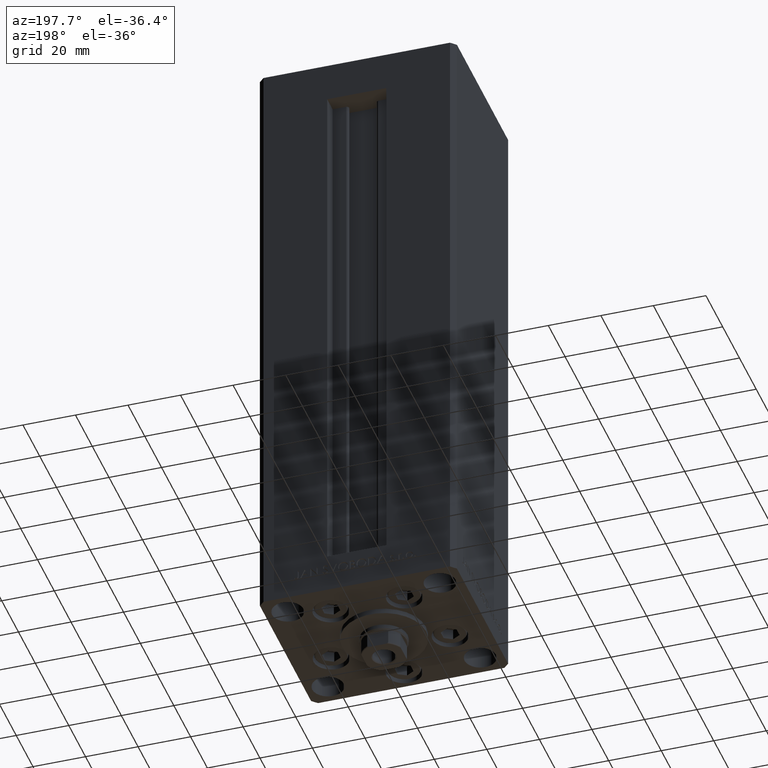
[diagram: clean part render]
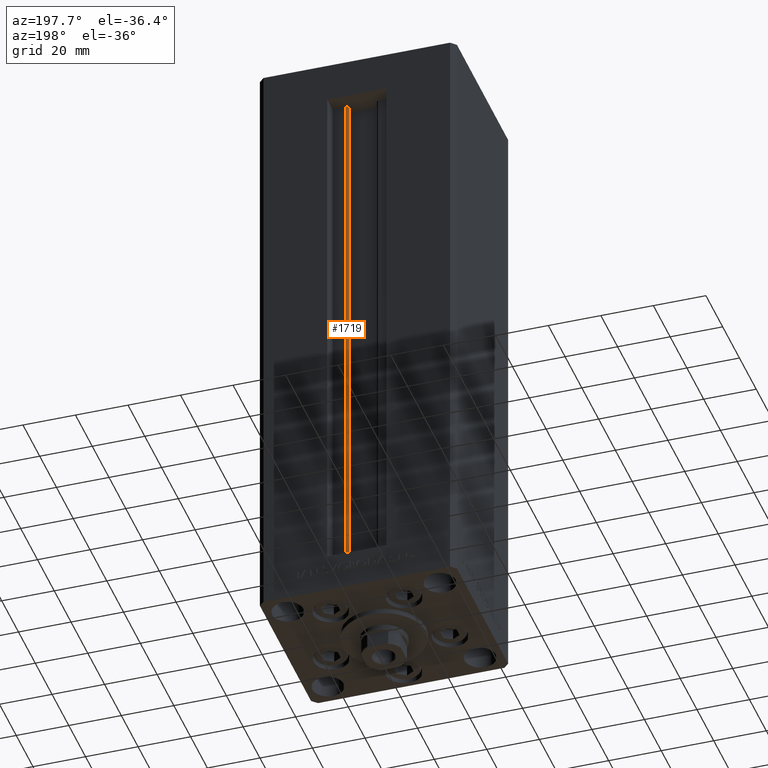
[diagram: same view with one face highlighted and labeled with its STEP entity id]
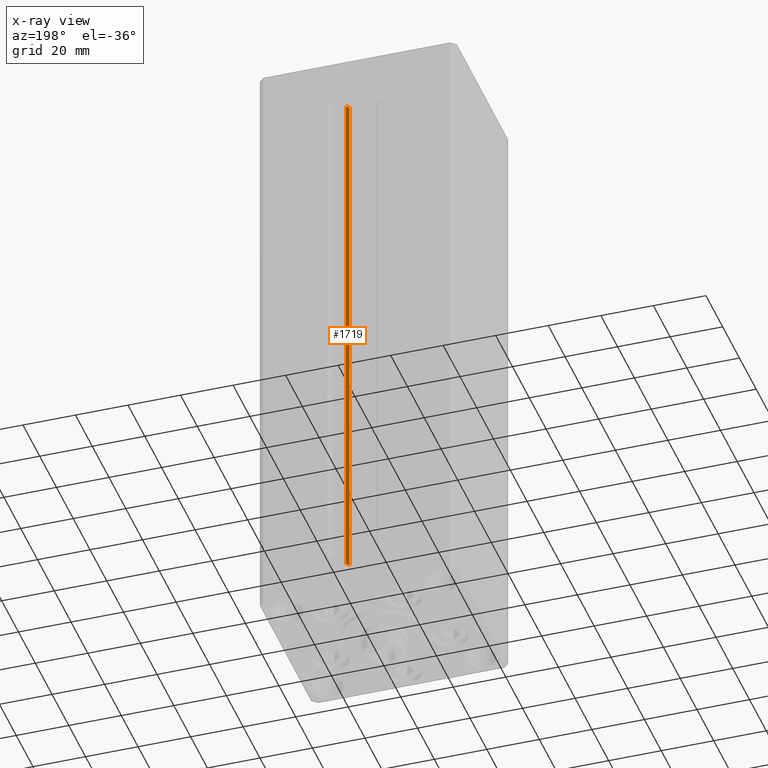
[diagram: x-ray of the same camera — body ghosted, the highlighted face saturated]
A machine part, auxiliary view. The second image highlights one B-rep face of the part: STEP entity #1719.
The next image is the same camera in x-ray: the body ghosted, the highlighted face saturated — about 0% of this face is hidden behind the body in this view.
In plain terms, the highlighted cylindrical surface (edge-blend (fillet) strip) has radius 0.9333 mm, axis along (0, 0, 1).
Its self-contained STEP definition (entity closure, byte-faithful):
#565 = CIRCLE ( 'NONE', #26622, 0.9333333333340008142 ) ;
#674 = VECTOR ( 'NONE', #31912, 1000.000000000000000 ) ;
#1719 = ADVANCED_FACE ( 'NONE', ( #30383 ), #42275, .T. ) ;
#3737 = VECTOR ( 'NONE', #37633, 1000.000000000000000 ) ;
#7791 = ORIENTED_EDGE ( 'NONE', *, *, #36480, .F. ) ;
#8090 = CIRCLE ( 'NONE', #36567, 0.9333333333340008142 ) ;
#8373 = CARTESIAN_POINT ( 'NONE',  ( 6.183333333334001480, 25.06666666666599141, 0.000000000000000000 ) ) ;
#9580 = CARTESIAN_POINT ( 'NONE',  ( 5.375042956467948052, 24.59999999999899245, 206.0000000000000000 ) ) ;
#11633 = CARTESIAN_POINT ( 'NONE',  ( 6.183333333334001480, 25.99999999999999289, 0.000000000000000000 ) ) ;
#13048 = CARTESIAN_POINT ( 'NONE',  ( 6.183333333334001480, 25.99999999999999289, 0.000000000000000000 ) ) ;
#13874 = VERTEX_POINT ( 'NONE', #13048 ) ;
#15114 = ORIENTED_EDGE ( 'NONE', *, *, #36153, .F. ) ;
#16321 = AXIS2_PLACEMENT_3D ( 'NONE', #8373, #37585, #22473 ) ;
#16715 = ORIENTED_EDGE ( 'NONE', *, *, #44260, .T. ) ;
#16830 = LINE ( 'NONE', #17314, #674 ) ;
#17314 = CARTESIAN_POINT ( 'NONE',  ( 5.375042956467947164, 24.59999999999899245, 0.000000000000000000 ) ) ;
#18418 = CARTESIAN_POINT ( 'NONE',  ( 6.183333333334001480, 25.06666666666599141, 206.0000000000000000 ) ) ;
#22135 = EDGE_LOOP ( 'NONE', ( #15114, #7791, #16715, #34017 ) ) ;
#22394 = EDGE_CURVE ( 'NONE', #32685, #35765, #8090, .T. ) ;
#22473 = DIRECTION ( 'NONE',  ( 1.000000000000000000, 0.000000000000000000, 0.000000000000000000 ) ) ;
#26622 = AXIS2_PLACEMENT_3D ( 'NONE', #30876, #31841, #46935 ) ;
#30383 = FACE_OUTER_BOUND ( 'NONE', #22135, .T. ) ;
#30688 = LINE ( 'NONE', #11633, #3737 ) ;
#30876 = CARTESIAN_POINT ( 'NONE',  ( 6.183333333334001480, 25.06666666666599141, 0.000000000000000000 ) ) ;
#31522 = VERTEX_POINT ( 'NONE', #40273 ) ;
#31841 = DIRECTION ( 'NONE',  ( -0.000000000000000000, -0.000000000000000000, -1.000000000000000000 ) ) ;
#31912 = DIRECTION ( 'NONE',  ( -0.000000000000000000, -0.000000000000000000, 1.000000000000000000 ) ) ;
#32685 = VERTEX_POINT ( 'NONE', #9580 ) ;
#32994 = CARTESIAN_POINT ( 'NONE',  ( 6.183333333334001480, 25.99999999999999289, 206.0000000000000000 ) ) ;
#33503 = DIRECTION ( 'NONE',  ( 0.000000000000000000, 0.000000000000000000, -1.000000000000000000 ) ) ;
#34017 = ORIENTED_EDGE ( 'NONE', *, *, #22394, .T. ) ;
#35765 = VERTEX_POINT ( 'NONE', #32994 ) ;
#36153 = EDGE_CURVE ( 'NONE', #13874, #35765, #30688, .T. ) ;
#36480 = EDGE_CURVE ( 'NONE', #31522, #13874, #565, .T. ) ;
#36567 = AXIS2_PLACEMENT_3D ( 'NONE', #18418, #33503, #48845 ) ;
#37585 = DIRECTION ( 'NONE',  ( -0.000000000000000000, -0.000000000000000000, 1.000000000000000000 ) ) ;
#37633 = DIRECTION ( 'NONE',  ( -0.000000000000000000, -0.000000000000000000, 1.000000000000000000 ) ) ;
#40273 = CARTESIAN_POINT ( 'NONE',  ( 5.375042956467947164, 24.59999999999899245, 0.000000000000000000 ) ) ;
#42275 = CYLINDRICAL_SURFACE ( 'NONE', #16321, 0.9333333333340008142 ) ;
#44260 = EDGE_CURVE ( 'NONE', #31522, #32685, #16830, .T. ) ;
#46935 = DIRECTION ( 'NONE',  ( 1.000000000000000000, 0.000000000000000000, 0.000000000000000000 ) ) ;
#48845 = DIRECTION ( 'NONE',  ( 1.000000000000000000, 0.000000000000000000, 0.000000000000000000 ) ) ;